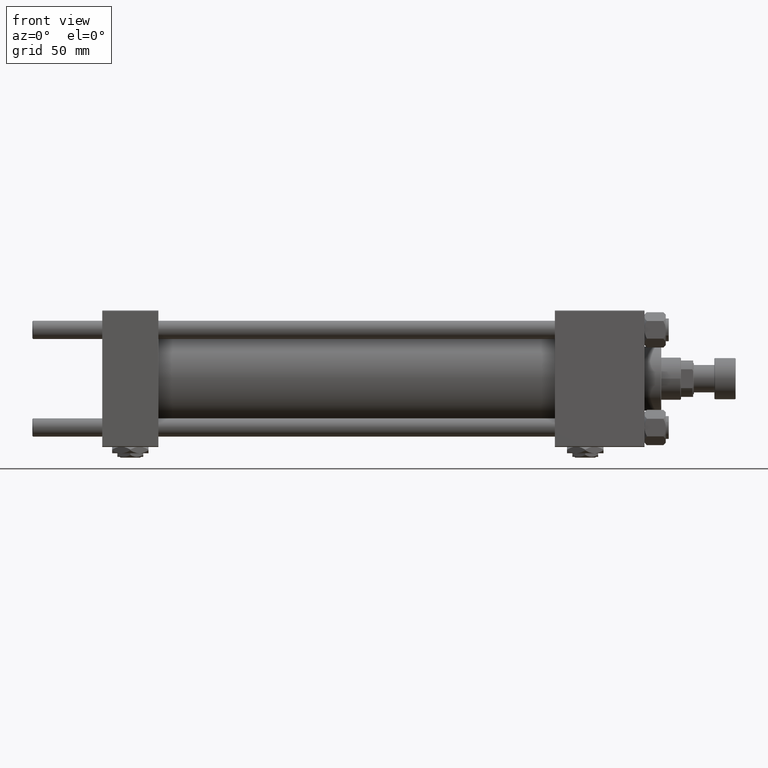
[diagram: clean part render]
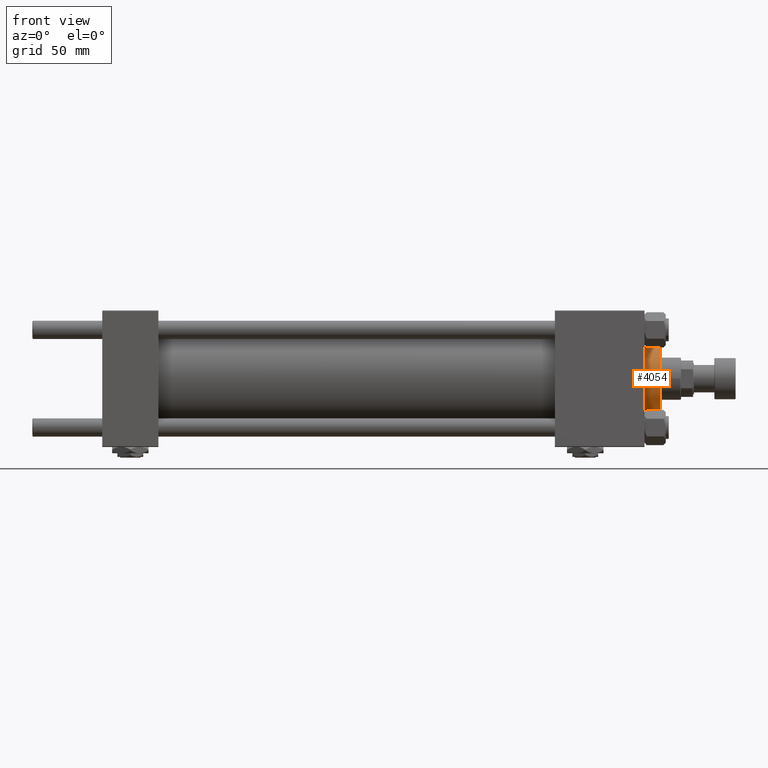
[diagram: same view with one face highlighted and labeled with its STEP entity id]
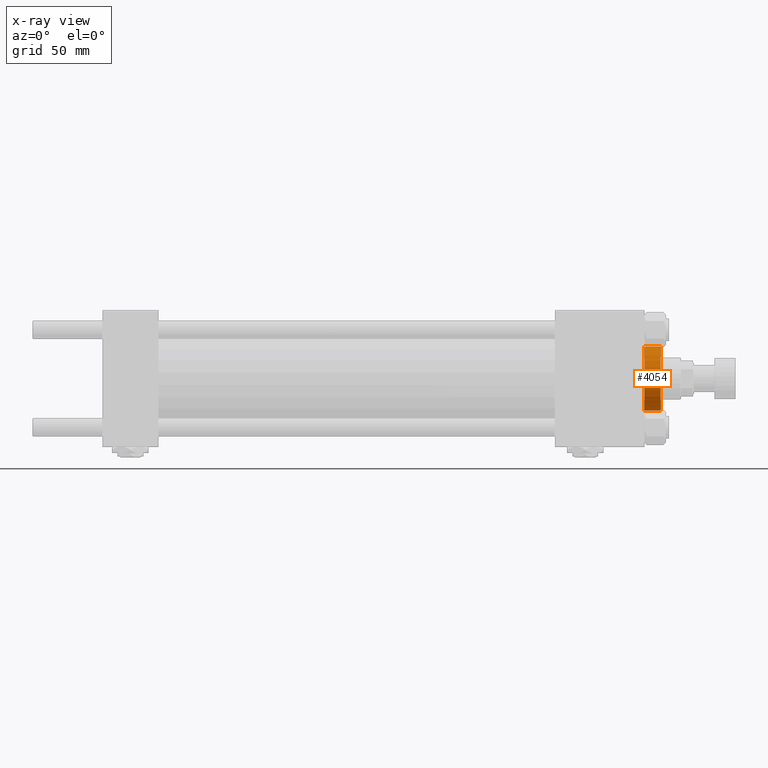
[diagram: x-ray of the same camera — body ghosted, the highlighted face saturated]
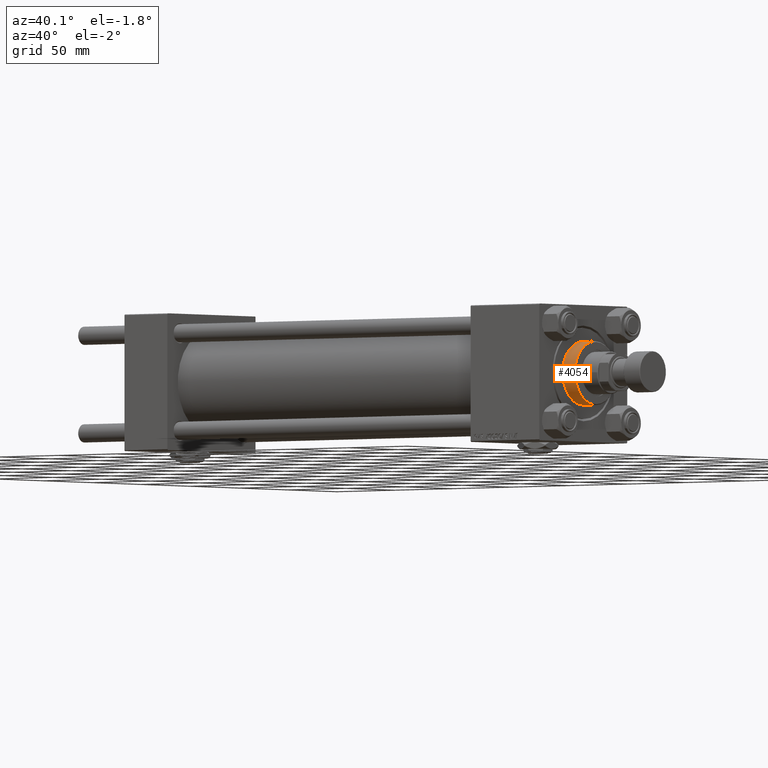
[diagram: same view with one face highlighted and labeled with its STEP entity id]
A machine part, front view. The second image highlights one B-rep face of the part: STEP entity #4054.
The next image is the same camera in x-ray: the body ghosted, the highlighted face saturated — about 0% of this face is hidden behind the body in this view.
A second angle (auxiliary view) of the same face is appended — the face is thin or edge-on in the first view.
In plain terms, the highlighted cylindrical surface (edge-blend (fillet) strip) has radius 21 mm, axis along (-1, -0, 0).
Its self-contained STEP definition (entity closure, byte-faithful):
#816 = VERTEX_POINT ( 'NONE', #11522 ) ;
#1651 = DIRECTION ( 'NONE',  ( -0.000000000000000000, -0.000000000000000000, -1.000000000000000000 ) ) ;
#3548 = EDGE_LOOP ( 'NONE', ( #12347, #34846, #40044, #7751 ) ) ;
#4054 = ADVANCED_FACE ( 'NONE', ( #39701 ), #32538, .T. ) ;
#4381 = AXIS2_PLACEMENT_3D ( 'NONE', #51858, #43935, #15387 ) ;
#5682 = DIRECTION ( 'NONE',  ( 1.000000000000000000, 0.000000000000000000, 0.000000000000000000 ) ) ;
#7266 = VECTOR ( 'NONE', #39850, 1000.000000000000000 ) ;
#7751 = ORIENTED_EDGE ( 'NONE', *, *, #45678, .T. ) ;
#7860 = DIRECTION ( 'NONE',  ( 1.000000000000000000, 0.000000000000000000, 0.000000000000000000 ) ) ;
#10079 = DIRECTION ( 'NONE',  ( 0.000000000000000000, 0.000000000000000000, -1.000000000000000000 ) ) ;
#10127 = VERTEX_POINT ( 'NONE', #25037 ) ;
#11522 = CARTESIAN_POINT ( 'NONE',  ( -21.00000000000000000, 0.000000000000000000, 39.19999999999999574 ) ) ;
#12347 = ORIENTED_EDGE ( 'NONE', *, *, #44673, .F. ) ;
#14861 = VECTOR ( 'NONE', #1651, 1000.000000000000000 ) ;
#15387 = DIRECTION ( 'NONE',  ( -1.000000000000000000, 0.000000000000000000, 0.000000000000000000 ) ) ;
#15818 = AXIS2_PLACEMENT_3D ( 'NONE', #23477, #10079, #7860 ) ;
#17009 = CARTESIAN_POINT ( 'NONE',  ( -21.00000000000000000, 0.000000000000000000, 39.69999999999999574 ) ) ;
#18961 = CARTESIAN_POINT ( 'NONE',  ( 21.00000000000000000, 2.571758278209441661E-15, 28.69999999999999929 ) ) ;
#19507 = LINE ( 'NONE', #34839, #7266 ) ;
#19962 = CIRCLE ( 'NONE', #23343, 21.00000000000000000 ) ;
#23343 = AXIS2_PLACEMENT_3D ( 'NONE', #41905, #25773, #5682 ) ;
#23477 = CARTESIAN_POINT ( 'NONE',  ( 0.000000000000000000, 0.000000000000000000, 39.19999999999999574 ) ) ;
#25037 = CARTESIAN_POINT ( 'NONE',  ( -21.00000000000000000, 0.000000000000000000, 28.69999999999999929 ) ) ;
#25773 = DIRECTION ( 'NONE',  ( 0.000000000000000000, 0.000000000000000000, 1.000000000000000000 ) ) ;
#26075 = VERTEX_POINT ( 'NONE', #18961 ) ;
#32538 = CYLINDRICAL_SURFACE ( 'NONE', #4381, 21.00000000000000000 ) ;
#32701 = CIRCLE ( 'NONE', #15818, 21.00000000000000000 ) ;
#32808 = CARTESIAN_POINT ( 'NONE',  ( 21.00000000000000000, 2.571758278209441661E-15, 39.19999999999999574 ) ) ;
#34839 = CARTESIAN_POINT ( 'NONE',  ( 21.00000000000000000, 2.571758278209441661E-15, 39.69999999999999574 ) ) ;
#34846 = ORIENTED_EDGE ( 'NONE', *, *, #47464, .T. ) ;
#39701 = FACE_OUTER_BOUND ( 'NONE', #3548, .T. ) ;
#39850 = DIRECTION ( 'NONE',  ( -0.000000000000000000, -0.000000000000000000, -1.000000000000000000 ) ) ;
#40044 = ORIENTED_EDGE ( 'NONE', *, *, #43892, .T. ) ;
#41905 = CARTESIAN_POINT ( 'NONE',  ( 0.000000000000000000, 0.000000000000000000, 28.69999999999999929 ) ) ;
#43166 = VERTEX_POINT ( 'NONE', #32808 ) ;
#43892 = EDGE_CURVE ( 'NONE', #816, #10127, #49265, .T. ) ;
#43935 = DIRECTION ( 'NONE',  ( -0.000000000000000000, -0.000000000000000000, -1.000000000000000000 ) ) ;
#44673 = EDGE_CURVE ( 'NONE', #43166, #26075, #19507, .T. ) ;
#45678 = EDGE_CURVE ( 'NONE', #10127, #26075, #19962, .T. ) ;
#47464 = EDGE_CURVE ( 'NONE', #43166, #816, #32701, .T. ) ;
#49265 = LINE ( 'NONE', #17009, #14861 ) ;
#51858 = CARTESIAN_POINT ( 'NONE',  ( 0.000000000000000000, 0.000000000000000000, 39.69999999999999574 ) ) ;